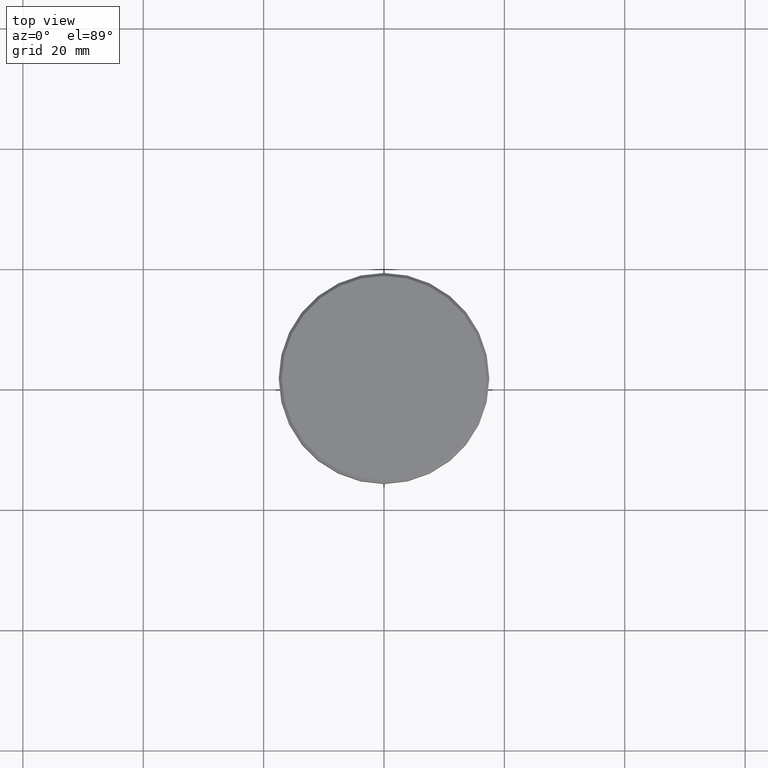
[diagram: clean part render]
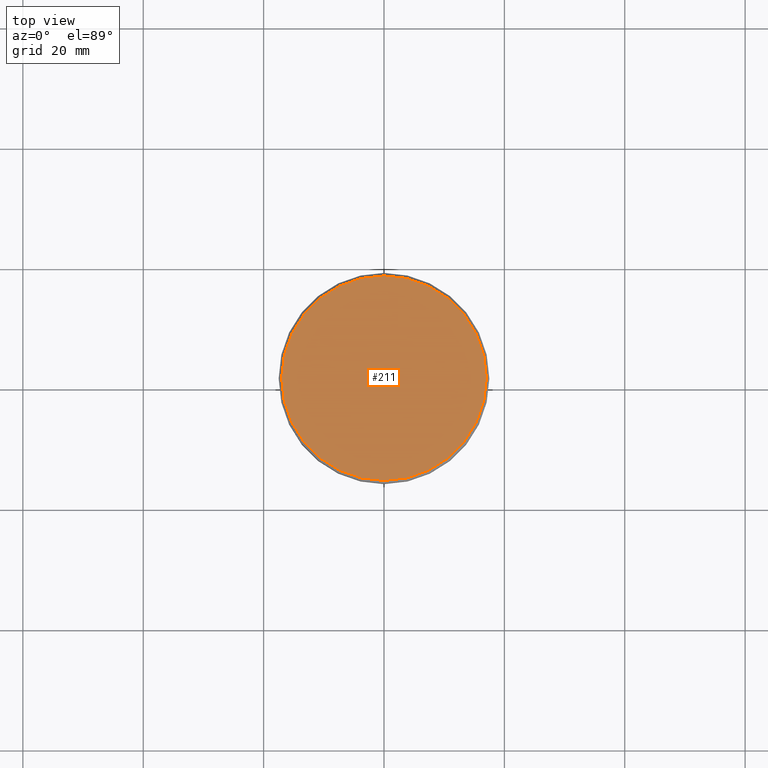
[diagram: same view with one face highlighted and labeled with its STEP entity id]
A machine part, top view. The second image highlights one B-rep face of the part: STEP entity #211.
In plain terms, the highlighted planar face has unit normal (0, -0, 1).
Its self-contained STEP definition (entity closure, byte-faithful):
#21 = DIRECTION ( 'NONE',  ( 1.000000000000000000, 0.000000000000000000, 0.000000000000000000 ) ) ;
#46 = VERTEX_POINT ( 'NONE', #594 ) ;
#166 = DIRECTION ( 'NONE',  ( 0.000000000000000000, -0.000000000000000000, 1.000000000000000000 ) ) ;
#187 = CARTESIAN_POINT ( 'NONE',  ( 16.99999999999997513, 2.112515728529182883E-15, 0.000000000000000000 ) ) ;
#211 = ADVANCED_FACE ( 'NONE', ( #429 ), #716, .T. ) ;
#281 = CARTESIAN_POINT ( 'NONE',  ( 0.000000000000000000, 0.000000000000000000, 0.000000000000000000 ) ) ;
#329 = AXIS2_PLACEMENT_3D ( 'NONE', #940, #826, #919 ) ;
#429 = FACE_OUTER_BOUND ( 'NONE', #662, .T. ) ;
#558 = CIRCLE ( 'NONE', #925, 16.99999999999997513 ) ;
#559 = DIRECTION ( 'NONE',  ( -0.000000000000000000, -0.000000000000000000, 1.000000000000000000 ) ) ;
#594 = CARTESIAN_POINT ( 'NONE',  ( -16.99999999999997513, 0.000000000000000000, 0.000000000000000000 ) ) ;
#662 = EDGE_LOOP ( 'NONE', ( #809, #976 ) ) ;
#716 = PLANE ( 'NONE',  #905 ) ;
#768 = EDGE_CURVE ( 'NONE', #1090, #46, #944, .T. ) ;
#809 = ORIENTED_EDGE ( 'NONE', *, *, #1069, .T. ) ;
#826 = DIRECTION ( 'NONE',  ( -0.000000000000000000, -0.000000000000000000, 1.000000000000000000 ) ) ;
#904 = CARTESIAN_POINT ( 'NONE',  ( 0.000000000000000000, 0.000000000000000000, 0.000000000000000000 ) ) ;
#905 = AXIS2_PLACEMENT_3D ( 'NONE', #904, #166, #1096 ) ;
#919 = DIRECTION ( 'NONE',  ( 1.000000000000000000, 0.000000000000000000, 0.000000000000000000 ) ) ;
#925 = AXIS2_PLACEMENT_3D ( 'NONE', #281, #559, #21 ) ;
#940 = CARTESIAN_POINT ( 'NONE',  ( 0.000000000000000000, 0.000000000000000000, 0.000000000000000000 ) ) ;
#944 = CIRCLE ( 'NONE', #329, 16.99999999999997513 ) ;
#976 = ORIENTED_EDGE ( 'NONE', *, *, #768, .T. ) ;
#1069 = EDGE_CURVE ( 'NONE', #46, #1090, #558, .T. ) ;
#1090 = VERTEX_POINT ( 'NONE', #187 ) ;
#1096 = DIRECTION ( 'NONE',  ( 1.000000000000000000, 0.000000000000000000, 0.000000000000000000 ) ) ;